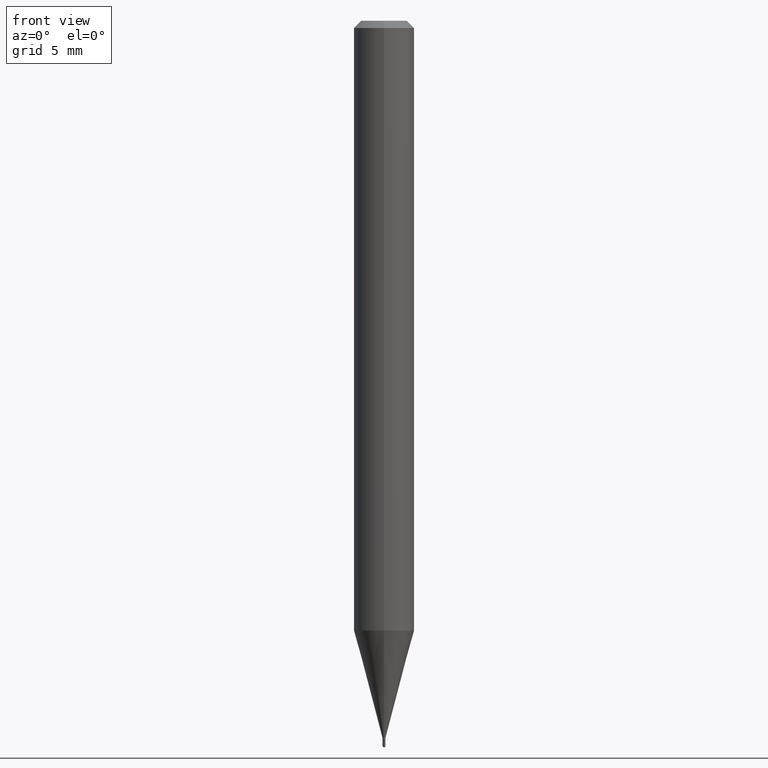
[diagram: clean part render]
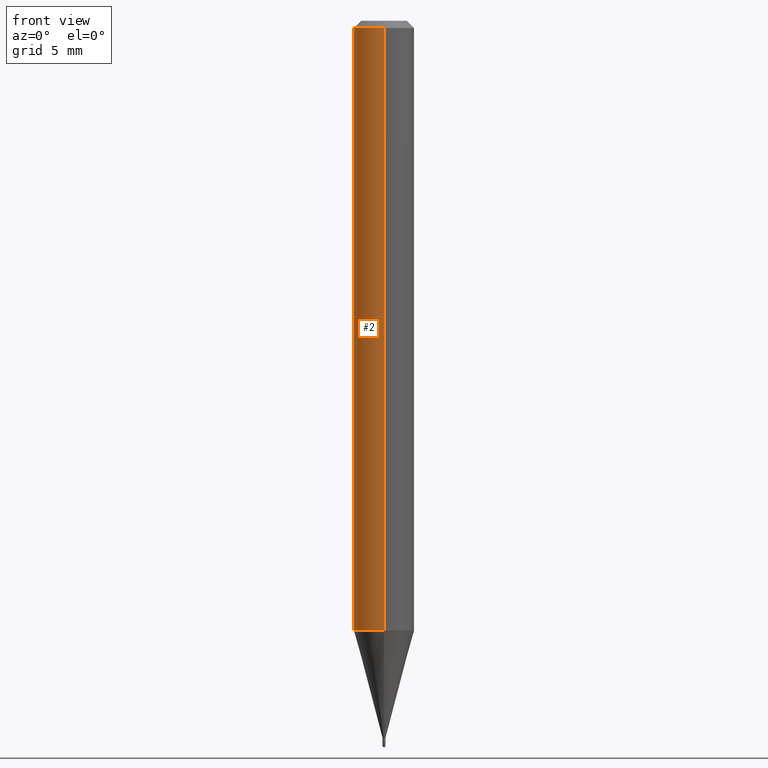
[diagram: same view with one face highlighted and labeled with its STEP entity id]
A machine part, front view. The second image highlights one B-rep face of the part: STEP entity #2.
In plain terms, the highlighted cylindrical surface (edge-blend (fillet) strip) has radius 1.5875 mm, axis along (-0, 0, 1).
Its self-contained STEP definition (entity closure, byte-faithful):
#2 = ADVANCED_FACE ( 'NONE', ( #293 ), #71, .T. ) ;
#62 = CIRCLE ( 'NONE', #319, 0.06250000000000000000 ) ;
#66 = VERTEX_POINT ( 'NONE', #478 ) ;
#71 = CYLINDRICAL_SURFACE ( 'NONE', #426, 0.06250000000000000000 ) ;
#74 = LINE ( 'NONE', #218, #149 ) ;
#75 = VERTEX_POINT ( 'NONE', #372 ) ;
#78 = DIRECTION ( 'NONE',  ( -6.982962677686265922E-15, -1.000000000000000000, 4.370956789862821150E-15 ) ) ;
#89 = EDGE_CURVE ( 'NONE', #75, #382, #421, .T. ) ;
#114 = AXIS2_PLACEMENT_3D ( 'NONE', #229, #510, #341 ) ;
#116 = DIRECTION ( 'NONE',  ( -2.445474316170176047E-29, 3.491473448230960175E-15, 1.000000000000000000 ) ) ;
#140 = EDGE_CURVE ( 'NONE', #66, #75, #62, .T. ) ;
#149 = VECTOR ( 'NONE', #303, 39.37007874015748143 ) ;
#189 = ORIENTED_EDGE ( 'NONE', *, *, #462, .F. ) ;
#218 = CARTESIAN_POINT ( 'NONE',  ( 4.440892098500625669E-16, 0.06250000000000000000, -2.182170905144350109E-16 ) ) ;
#229 = CARTESIAN_POINT ( 'NONE',  ( 3.668211474255266646E-31, -5.237210172346444084E-17, -0.01500000000000000812 ) ) ;
#235 = CARTESIAN_POINT ( 'NONE',  ( -4.364351673553916201E-16, -0.06250000000000000000, 2.182170905144350109E-16 ) ) ;
#238 = ORIENTED_EDGE ( 'NONE', *, *, #89, .T. ) ;
#256 = CARTESIAN_POINT ( 'NONE',  ( 4.440892098500935790E-16, 0.06249999999999995143, -0.01500000000000022669 ) ) ;
#272 = EDGE_CURVE ( 'NONE', #66, #350, #74, .T. ) ;
#286 = CARTESIAN_POINT ( 'NONE',  ( 0.000000000000000000, 0.000000000000000000, 0.000000000000000000 ) ) ;
#293 = FACE_OUTER_BOUND ( 'NONE', #309, .T. ) ;
#303 = DIRECTION ( 'NONE',  ( -2.445474316170176327E-29, 3.491473448230960570E-15, 1.000000000000000000 ) ) ;
#309 = EDGE_LOOP ( 'NONE', ( #351, #493, #238, #189 ) ) ;
#319 = AXIS2_PLACEMENT_3D ( 'NONE', #416, #116, #78 ) ;
#325 = VECTOR ( 'NONE', #383, 39.37007874015748143 ) ;
#326 = CIRCLE ( 'NONE', #114, 0.06250000000000000000 ) ;
#329 = CARTESIAN_POINT ( 'NONE',  ( -4.364351673553912750E-16, -0.06250000000000005551, -0.01499999999999979128 ) ) ;
#341 = DIRECTION ( 'NONE',  ( -6.982962677686265922E-15, -1.000000000000000000, 3.483106191921935554E-15 ) ) ;
#350 = VERTEX_POINT ( 'NONE', #256 ) ;
#351 = ORIENTED_EDGE ( 'NONE', *, *, #272, .F. ) ;
#371 = DIRECTION ( 'NONE',  ( -2.445474316170176047E-29, 3.491473448230960175E-15, 1.000000000000000000 ) ) ;
#372 = CARTESIAN_POINT ( 'NONE',  ( -4.364351673553607559E-16, -0.06250000000000438538, -1.258942976949652293 ) ) ;
#382 = VERTEX_POINT ( 'NONE', #329 ) ;
#383 = DIRECTION ( 'NONE',  ( -2.445474316170176327E-29, 3.491473448230960570E-15, 1.000000000000000000 ) ) ;
#416 = CARTESIAN_POINT ( 'NONE',  ( 3.078712715653197173E-29, -4.395565976856553855E-15, -1.258942976949652515 ) ) ;
#421 = LINE ( 'NONE', #235, #325 ) ;
#426 = AXIS2_PLACEMENT_3D ( 'NONE', #286, #371, #495 ) ;
#462 = EDGE_CURVE ( 'NONE', #350, #382, #326, .T. ) ;
#478 = CARTESIAN_POINT ( 'NONE',  ( 4.440892098500932831E-16, 0.06249999999999560074, -1.258942976949652737 ) ) ;
#493 = ORIENTED_EDGE ( 'NONE', *, *, #140, .T. ) ;
#495 = DIRECTION ( 'NONE',  ( -6.982962677686265922E-15, -1.000000000000000000, 3.491473448230960175E-15 ) ) ;
#510 = DIRECTION ( 'NONE',  ( -2.445474316170176047E-29, 3.491473448230960175E-15, 1.000000000000000000 ) ) ;